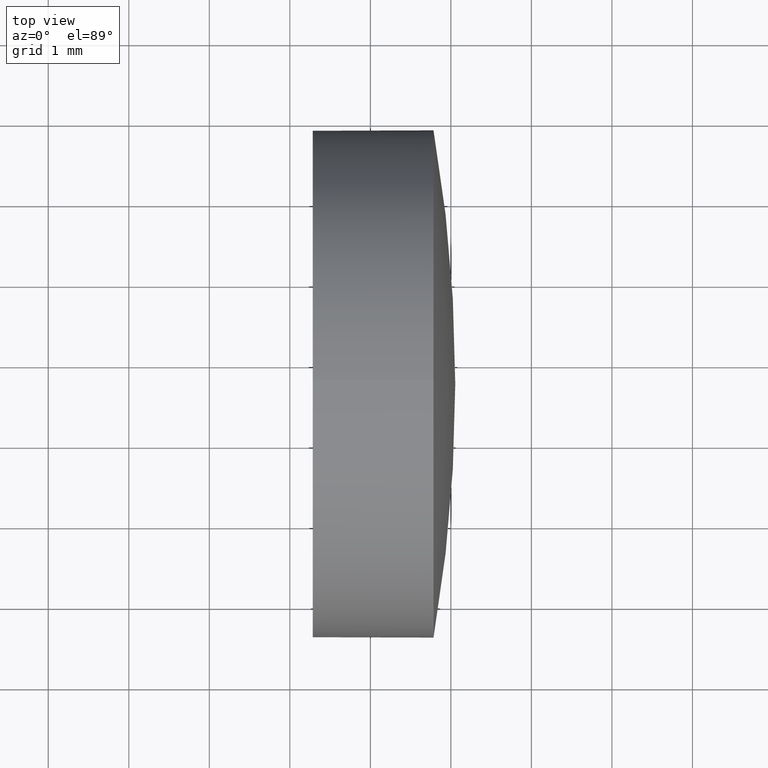
[diagram: clean part render]
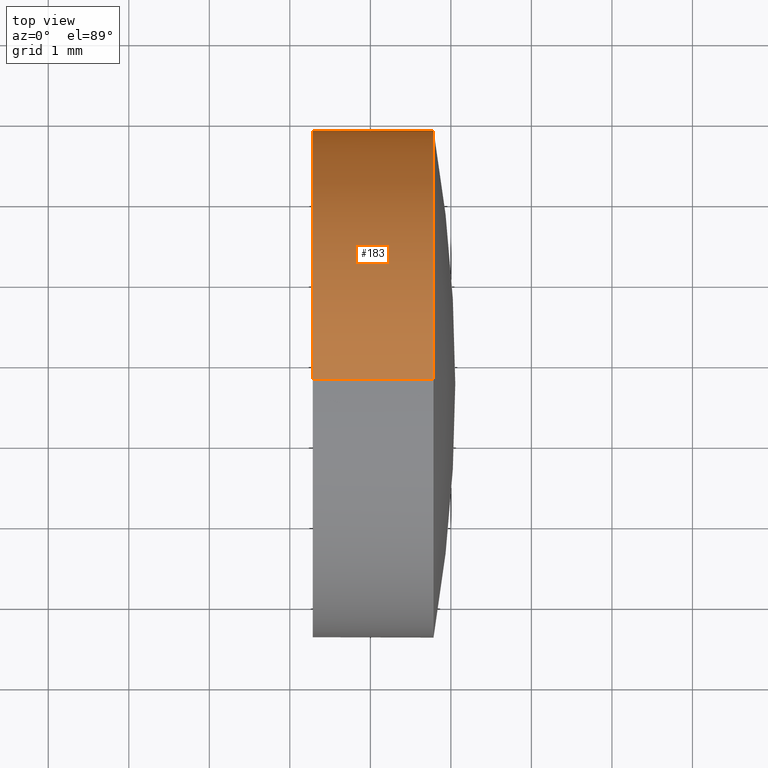
[diagram: same view with one face highlighted and labeled with its STEP entity id]
A machine part, top view. The second image highlights one B-rep face of the part: STEP entity #183.
In plain terms, the highlighted cylindrical surface (partial cylindrical patch) has radius 3.15 mm, axis along (-1, -0, -0).
Its self-contained STEP definition (entity closure, byte-faithful):
#1 = ORIENTED_EDGE ( 'NONE', *, *, #84, .T. ) ;
#2 = CIRCLE ( 'NONE', #60, 3.149999999999999900 ) ;
#3 = FACE_OUTER_BOUND ( 'NONE', #4, .T. ) ;
#4 = EDGE_LOOP ( 'NONE', ( #1, #29, #98, #81, #142 ) ) ;
#23 = VERTEX_POINT ( 'NONE', #55 ) ;
#29 = ORIENTED_EDGE ( 'NONE', *, *, #96, .T. ) ;
#33 = CARTESIAN_POINT ( 'NONE',  ( 444.2844064456223800, 32.74152775011270900, 0.0000000000000000000 ) ) ;
#38 = VERTEX_POINT ( 'NONE', #134 ) ;
#39 = CARTESIAN_POINT ( 'NONE',  ( 445.7844064456223800, 32.74152775011270900, 0.0000000000000000000 ) ) ;
#41 = DIRECTION ( 'NONE',  ( -1.000000000000000000, -0.0000000000000000000, -0.0000000000000000000 ) ) ;
#43 = VECTOR ( 'NONE', #74, 1000.000000000000000 ) ;
#44 = EDGE_CURVE ( 'NONE', #133, #86, #2, .T. ) ;
#48 = LINE ( 'NONE', #161, #43 ) ;
#49 = CARTESIAN_POINT ( 'NONE',  ( 445.7844064456223800, 32.74152775011270900, -3.149999999999999900 ) ) ;
#50 = CYLINDRICAL_SURFACE ( 'NONE', #120, 3.149999999999999900 ) ;
#51 = DIRECTION ( 'NONE',  ( -1.000000000000000000, -0.0000000000000000000, -0.0000000000000000000 ) ) ;
#54 = DIRECTION ( 'NONE',  ( 0.0000000000000000000, 0.0000000000000000000, 1.000000000000000000 ) ) ;
#55 = CARTESIAN_POINT ( 'NONE',  ( 445.7844064456223800, 32.74152775011270900, 3.149999999999999900 ) ) ;
#58 = CARTESIAN_POINT ( 'NONE',  ( 443.4237683568735000, 32.74152775011270900, 0.0000000000000000000 ) ) ;
#60 = AXIS2_PLACEMENT_3D ( 'NONE', #33, #41, #87 ) ;
#65 = EDGE_CURVE ( 'NONE', #23, #133, #169, .T. ) ;
#69 = DIRECTION ( 'NONE',  ( -1.000000000000000000, -0.0000000000000000000, -0.0000000000000000000 ) ) ;
#73 = VECTOR ( 'NONE', #69, 1000.000000000000000 ) ;
#74 = DIRECTION ( 'NONE',  ( -1.000000000000000000, -0.0000000000000000000, -0.0000000000000000000 ) ) ;
#80 = DIRECTION ( 'NONE',  ( -1.000000000000000000, -0.0000000000000000000, -0.0000000000000000000 ) ) ;
#81 = ORIENTED_EDGE ( 'NONE', *, *, #65, .F. ) ;
#84 = EDGE_CURVE ( 'NONE', #38, #175, #102, .T. ) ;
#86 = VERTEX_POINT ( 'NONE', #186 ) ;
#87 = DIRECTION ( 'NONE',  ( 0.0000000000000000000, 0.0000000000000000000, 1.000000000000000000 ) ) ;
#93 = DIRECTION ( 'NONE',  ( -1.000000000000000000, -0.0000000000000000000, -0.0000000000000000000 ) ) ;
#95 = DIRECTION ( 'NONE',  ( 0.0000000000000000000, 0.0000000000000000000, 1.000000000000000000 ) ) ;
#96 = EDGE_CURVE ( 'NONE', #175, #86, #48, .T. ) ;
#98 = ORIENTED_EDGE ( 'NONE', *, *, #44, .F. ) ;
#102 = CIRCLE ( 'NONE', #130, 3.149999999999999900 ) ;
#120 = AXIS2_PLACEMENT_3D ( 'NONE', #58, #80, #95 ) ;
#129 = CIRCLE ( 'NONE', #174, 3.149999999999999900 ) ;
#130 = AXIS2_PLACEMENT_3D ( 'NONE', #39, #51, #54 ) ;
#133 = VERTEX_POINT ( 'NONE', #139 ) ;
#134 = CARTESIAN_POINT ( 'NONE',  ( 445.7844064456223800, 35.89152775011271500, 3.857637417314053200E-016 ) ) ;
#139 = CARTESIAN_POINT ( 'NONE',  ( 444.2844064456223800, 32.74152775011270900, 3.149999999999999900 ) ) ;
#142 = ORIENTED_EDGE ( 'NONE', *, *, #172, .T. ) ;
#146 = CARTESIAN_POINT ( 'NONE',  ( 443.4237683568735000, 32.74152775011270900, 3.149999999999999900 ) ) ;
#161 = CARTESIAN_POINT ( 'NONE',  ( 443.4237683568735000, 32.74152775011270900, -3.149999999999999900 ) ) ;
#169 = LINE ( 'NONE', #146, #73 ) ;
#172 = EDGE_CURVE ( 'NONE', #23, #38, #129, .T. ) ;
#174 = AXIS2_PLACEMENT_3D ( 'NONE', #176, #93, #182 ) ;
#175 = VERTEX_POINT ( 'NONE', #49 ) ;
#176 = CARTESIAN_POINT ( 'NONE',  ( 445.7844064456223800, 32.74152775011270900, 0.0000000000000000000 ) ) ;
#182 = DIRECTION ( 'NONE',  ( 0.0000000000000000000, 0.0000000000000000000, 1.000000000000000000 ) ) ;
#183 = ADVANCED_FACE ( 'NONE', ( #3 ), #50, .T. ) ;
#186 = CARTESIAN_POINT ( 'NONE',  ( 444.2844064456223800, 32.74152775011270900, -3.149999999999999900 ) ) ;